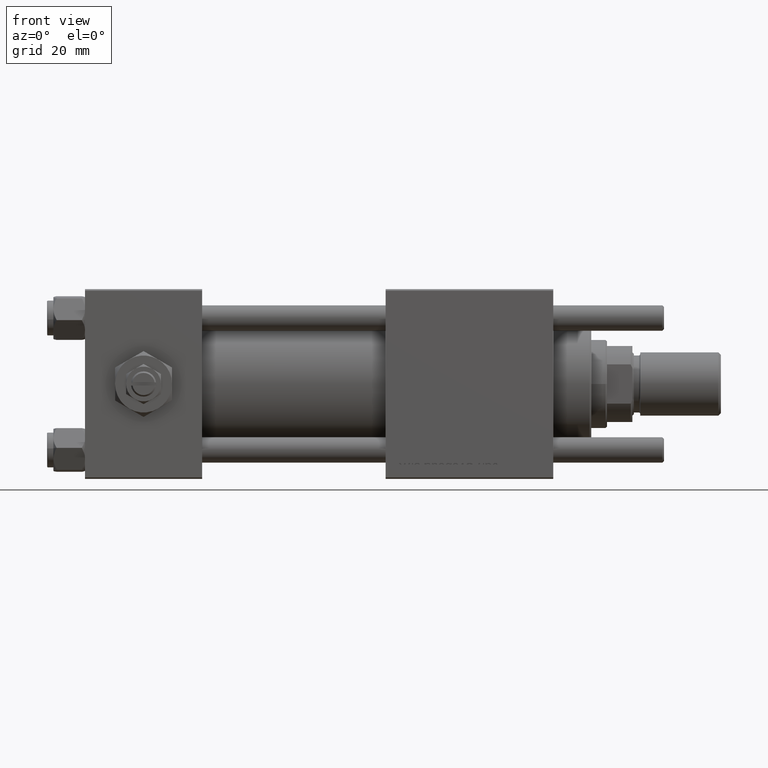
[diagram: clean part render]
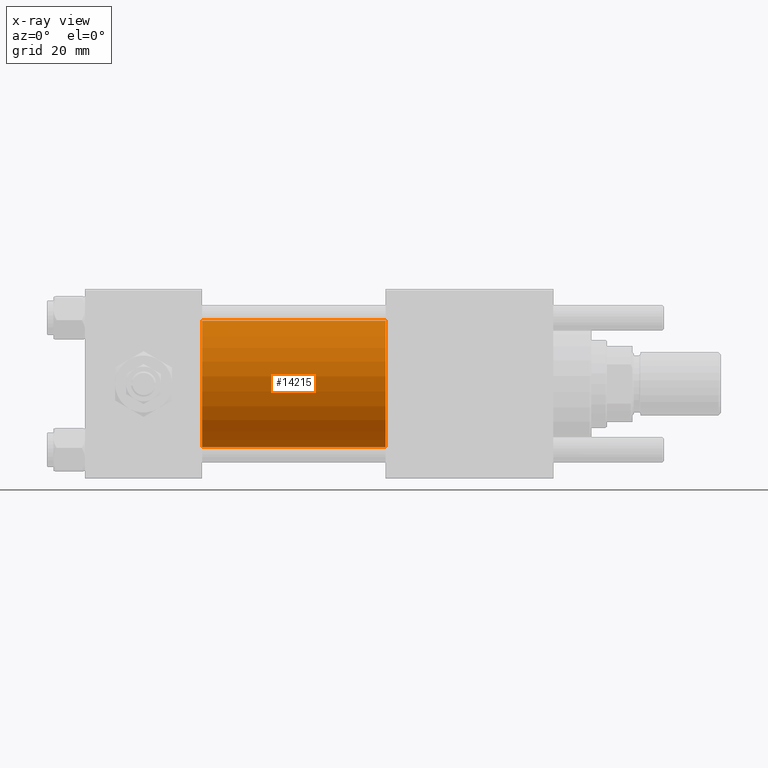
[diagram: x-ray — body ghosted, one internal face saturated and labeled with its STEP entity id]
A machine part, front view, then the same camera in x-ray: the body is ghosted and one INTERNAL B-rep face — a face not visible from any outside direction — is saturated and labeled: STEP entity #14215.
In plain terms, the highlighted cylindrical surface (partial cylindrical patch) has radius 20 mm, axis along (-1, -0, -0).
Its self-contained STEP definition (entity closure, byte-faithful):
#1199 = CARTESIAN_POINT ( 'NONE',  ( 95.00000000000000000, -1.527916156705046464E-16, -20.00000000000000000 ) ) ;
#3129 = ORIENTED_EDGE ( 'NONE', *, *, #33467, .F. ) ;
#4316 = CARTESIAN_POINT ( 'NONE',  ( 37.00000000000000000, -1.527916156705046464E-16, -20.00000000000000000 ) ) ;
#5886 = LINE ( 'NONE', #10647, #56444 ) ;
#7450 = VERTEX_POINT ( 'NONE', #1199 ) ;
#8072 = EDGE_CURVE ( 'NONE', #40617, #7450, #43370, .T. ) ;
#8302 = DIRECTION ( 'NONE',  ( -1.000000000000000000, -0.000000000000000000, -0.000000000000000000 ) ) ;
#9031 = CARTESIAN_POINT ( 'NONE',  ( 95.00000000000000000, -2.602085213965210642E-15, 0.000000000000000000 ) ) ;
#9734 = AXIS2_PLACEMENT_3D ( 'NONE', #23091, #23391, #33239 ) ;
#10647 = CARTESIAN_POINT ( 'NONE',  ( 95.00000000000000000, -2.602085213965210642E-15, 20.00000000000000000 ) ) ;
#12589 = CIRCLE ( 'NONE', #9734, 20.00000000000000000 ) ;
#13563 = VECTOR ( 'NONE', #30749, 1000.000000000000000 ) ;
#14215 = ADVANCED_FACE ( 'NONE', ( #35471 ), #21449, .F. ) ;
#21449 = CYLINDRICAL_SURFACE ( 'NONE', #37873, 20.00000000000000000 ) ;
#21772 = LINE ( 'NONE', #43585, #13563 ) ;
#22596 = VERTEX_POINT ( 'NONE', #4316 ) ;
#22765 = DIRECTION ( 'NONE',  ( 0.000000000000000000, 0.000000000000000000, -1.000000000000000000 ) ) ;
#23091 = CARTESIAN_POINT ( 'NONE',  ( 37.00000000000000000, -2.602085213965210642E-15, 0.000000000000000000 ) ) ;
#23391 = DIRECTION ( 'NONE',  ( 1.000000000000000000, 0.000000000000000000, 0.000000000000000000 ) ) ;
#26518 = DIRECTION ( 'NONE',  ( 0.000000000000000000, 0.000000000000000000, 1.000000000000000000 ) ) ;
#28569 = DIRECTION ( 'NONE',  ( -1.000000000000000000, -0.000000000000000000, -0.000000000000000000 ) ) ;
#30749 = DIRECTION ( 'NONE',  ( -1.000000000000000000, -0.000000000000000000, -0.000000000000000000 ) ) ;
#31948 = VERTEX_POINT ( 'NONE', #58071 ) ;
#32915 = EDGE_CURVE ( 'NONE', #40617, #31948, #5886, .T. ) ;
#33239 = DIRECTION ( 'NONE',  ( 0.000000000000000000, 0.000000000000000000, -1.000000000000000000 ) ) ;
#33467 = EDGE_CURVE ( 'NONE', #31948, #22596, #12589, .T. ) ;
#34639 = ORIENTED_EDGE ( 'NONE', *, *, #45572, .T. ) ;
#34948 = ORIENTED_EDGE ( 'NONE', *, *, #8072, .T. ) ;
#35471 = FACE_OUTER_BOUND ( 'NONE', #45928, .T. ) ;
#37873 = AXIS2_PLACEMENT_3D ( 'NONE', #53685, #8302, #26518 ) ;
#40617 = VERTEX_POINT ( 'NONE', #44517 ) ;
#43370 = CIRCLE ( 'NONE', #54829, 20.00000000000000000 ) ;
#43585 = CARTESIAN_POINT ( 'NONE',  ( 95.00000000000000000, -1.527916156705046464E-16, -20.00000000000000000 ) ) ;
#44517 = CARTESIAN_POINT ( 'NONE',  ( 95.00000000000000000, -2.602085213965210642E-15, 20.00000000000000000 ) ) ;
#45572 = EDGE_CURVE ( 'NONE', #7450, #22596, #21772, .T. ) ;
#45760 = DIRECTION ( 'NONE',  ( 1.000000000000000000, 0.000000000000000000, 0.000000000000000000 ) ) ;
#45928 = EDGE_LOOP ( 'NONE', ( #34948, #34639, #3129, #47994 ) ) ;
#47994 = ORIENTED_EDGE ( 'NONE', *, *, #32915, .F. ) ;
#53685 = CARTESIAN_POINT ( 'NONE',  ( 95.00000000000000000, -2.602085213965210642E-15, 0.000000000000000000 ) ) ;
#54829 = AXIS2_PLACEMENT_3D ( 'NONE', #9031, #45760, #22765 ) ;
#56444 = VECTOR ( 'NONE', #28569, 1000.000000000000000 ) ;
#58071 = CARTESIAN_POINT ( 'NONE',  ( 37.00000000000000000, -2.602085213965210642E-15, 20.00000000000000000 ) ) ;